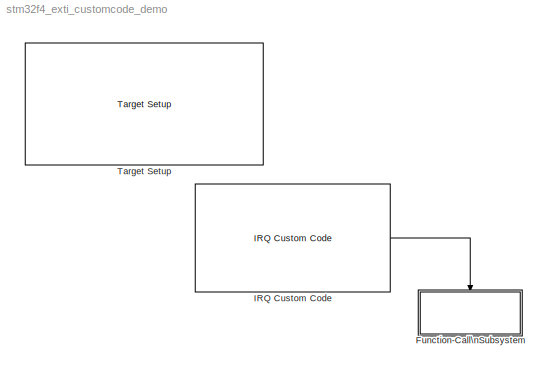
MODEL stm32f4_exti_customcode_demo
KIND model
CONFIG PreLoadFcn = waijung.modelPreload; % Required for working with Waijung Blockset. Do not remove.
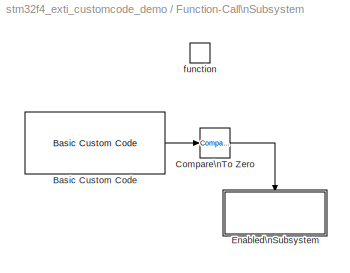
BLOCK [SubSystem] Function-Call\nSubsystem
  FunctionWithSeparateData = off
  MaskHideContents = off
  MinAlgLoopOccurrences = off
  Opaque = off
  Ports = [0, 0, 0, 1]
  PropExecContextOutsideSubsystem = off
  RTWSystemCode = Auto
  RequestExecContextInheritance = off
  TreatAsAtomicUnit = on
BLOCK [Reference] Function-Call\nSubsystem/Basic Custom Code  REF=waijung_customcode/Basic Custom Code
  Ports = [0, 1]
  SourceBlock = waijung_customcode/Basic Custom Code
  SourceType = waijung_basic_customcode
  blockid = FunctionCallSubsystemBasicCustomCode
  cinputportlabel = Sensor1,Sensor2,Switch1,Switch2
  cinputportlabelstr = [\"Sensor1\",\"Sensor2\",\"Switch1\",\"Switch2\"]
  coutputportlabel = IT_Status
  coutputportlabelstr = [\"IT_Status\"]
  enablecustomportlabel = on
  incfiles = {}
  incfilestrarray = []
  incpath = {}
  inputportcount = 0
  inputportdiminfo = []
  inputporttypeid = [-1]
  outputfuncallstr = { uint32_t reg_val; reg_val = (uint32_t) EXTI_GetITStatus(EXTI_Line0); *out1 = reg_val;}
  outputportcount = 1
  outputportdiminfo = [1  1  1  7]
  outputporttype = uint32
  outputporttypeid = [7]
  sampletime = inf
  sampletimestr = -1
  srcfiles = {}
  srcpath = {}
BLOCK [Reference] Function-Call\nSubsystem/Compare\nTo Zero  REF=simulink/Logic and Bit\nOperations/Compare\nTo Zero
  FunctionWithSeparateData = off
  LogicOutDataTypeMode = uint8
  Ports = [1, 1]
  RTWMemSecDataConstants = Inherit from model
  RTWMemSecDataInternal = Inherit from model
  RTWMemSecDataParameters = Inherit from model
  RTWMemSecFuncExecute = Inherit from model
  RTWMemSecFuncInitTerm = Inherit from model
  ShowPortLabels = FromPortIcon
  SourceBlock = simulink/Logic and Bit\nOperations/Compare\nTo Zero
  SourceType = Compare To Zero
  SystemSampleTime = -1
  ZeroCross = off
  relop = ~=
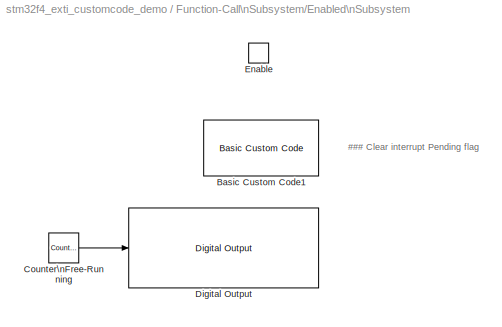
BLOCK [SubSystem] Function-Call\nSubsystem/Enabled\nSubsystem
  FunctionWithSeparateData = off
  MaskHideContents = off
  MinAlgLoopOccurrences = off
  Opaque = off
  Ports = [0, 0, 1]
  PropExecContextOutsideSubsystem = off
  RTWSystemCode = Auto
  RequestExecContextInheritance = off
  TreatAsAtomicUnit = on
BLOCK [Reference] Function-Call\nSubsystem/Enabled\nSubsystem/Basic Custom Code1  REF=waijung_customcode/Basic Custom Code
  Ports = []
  SourceBlock = waijung_customcode/Basic Custom Code
  SourceType = waijung_basic_customcode
  blockid = FunctionCallSubsystemEnabledSubsystemBasicCustomCode1
  cinputportlabel = Sensor1,Sensor2,Switch1,Switch2
  cinputportlabelstr = [\"Sensor1\",\"Sensor2\",\"Switch1\",\"Switch2\"]
  coutputportlabel = Drive1,Button1
  coutputportlabelstr = [\"Drive1\",\"Button1\"]
  enablecustomportlabel = on
  incfiles = {}
  incfilestrarray = []
  incpath = {}
  inputportcount = 0
  inputportdiminfo = []
  inputporttypeid = [-1]
  outputfuncallstr = { EXTI_ClearITPendingBit(EXTI_Line0); }
  outputportcount = 0
  outputportdiminfo = []
  outputporttypeid = [-1]
  sampletime = inf
  sampletimestr = -1
  srcfiles = {}
  srcpath = {}
BLOCK [Reference] Function-Call\nSubsystem/Enabled\nSubsystem/Counter\nFree-Running  REF=simulink/Sources/Counter\nFree-Running
  FunctionWithSeparateData = off
  NumBits = 16
  Ports = [0, 1]
  RTWMemSecDataConstants = Inherit from model
  RTWMemSecDataInternal = Inherit from model
  RTWMemSecDataParameters = Inherit from model
  RTWMemSecFuncExecute = Inherit from model
  RTWMemSecFuncInitTerm = Inherit from model
  ShowPortLabels = FromPortIcon
  SourceBlock = simulink/Sources/Counter\nFree-Running
  SourceType = Counter Free-Running
  SystemSampleTime = -1
  tsamp = -1
BLOCK [Reference] Function-Call\nSubsystem/Enabled\nSubsystem/Digital Output  REF=stm32f4_io_lib/Digital Output
  Ports = [1]
  SourceBlock = stm32f4_io_lib/Digital Output
  SourceType = stm32f4_digital_output
  bitbandingstr = \n#define FunctionCallSubsystemEnabledSubsystemDigitalOutput_D15 Peripheral_BB(GPIOD->ODR, 15)  /* Output pin */
  blockid = FunctionCallSubsystemEnabledSubsystemDigitalOutput
  cinputportlabel = In1, In2
  coutputportlabel = 0
  enablecustomportlabel = off
  globalinit = off
  pinstr = GPIO_Pin_15
  port = D
  porttype = Push Pull
  porttypestr = PP
  sampletime = -1
  sampletimestr = -1
  speed = 100
  use_bitband = on
  use_pin0 = off
  use_pin1 = off
  use_pin10 = off
  use_pin11 = off
  use_pin12 = off
  use_pin13 = off
  use_pin14 = off
  use_pin15 = on
  use_pin2 = off
  use_pin3 = off
  use_pin4 = off
  use_pin5 = off
  use_pin6 = off
  use_pin7 = off
  use_pin8 = off
  use_pin9 = off
  usedpinarray = [0  0  0  0  0  0  0  0  0  0  0  0  0  0  0  1]
BLOCK [EnablePort] Function-Call\nSubsystem/Enabled\nSubsystem/Enable
  Ports = []
BLOCK [TriggerPort] Function-Call\nSubsystem/function
  Ports = []
  StatesWhenEnabling = held
  TriggerType = function-call
BLOCK [Reference] IRQ Custom Code  REF=waijung_customcode/IRQ Custom Code
  Ports = [0, 1]
  SourceBlock = waijung_customcode/IRQ Custom Code
  SourceType = waijung_irq_customcode
  blockid = IRQCustomCode
  cinputportlabelstr = [\"\"]
  coutputportlabel = IRQ
  coutputportlabelstr = [\"IRQ\"]
  disablefuncallstr = /* disable_exti_customcode(); */
  enablecustomportlabel = on
  enablefuncallstr = enable_exti_customcode();
  incfiles = {'stm32f4xx_gpio.h';'stm32f4xx_exti.h'; 'exti_customcode.h'}
  incfilestrarray = [\"stm32f4xx_gpio.h\",\"stm32f4xx_exti.h\",\"exti_customcode.h\"]
  incpath = {stm32f4incpath, fullfile(pwd,'exti_customcode')}
  initialfuncallstr = /* Write block start-up code here */
  inputportcount = 0
  inputporttypeid = [-1]
  outputfuncallstr = void EXTI0_IRQHandler (void)
  outputportcount = 1
  outputporttype = uint32
  outputporttypeid = [7]
  sampletime = inf
  sampletimestr = Inf
  srcfiles = {'stm32f4xx_gpio.c','stm32f4xx_exti.c', 'exti_customcode.c'}
  srcpath = {stm32f4srcpath, fullfile(pwd,'exti_customcode')}
BLOCK [Reference] Target Setup  REF=stm32f4_device_config_lib/Target Setup
  Ports = []
  Priority = 100
  SourceBlock = stm32f4_device_config_lib/Target Setup
  SourceType = stm32f4_target_setup
  assemblercontrolstr = $(patsubst %, -I%, .) -mcpu=cortex-m4 -mthumb -mthumb-interwork -mfloat-abi=hard -mfpu=fpv4-sp-d16 -ffast-math -Wall -Wextra -Ofast -Wa,-amhls=$(<:.s=.lst) -D__STACK_SIZE=$(STACK_SIZE) -D__HEAP_SIZE=$(HEAP_SIZE)
  blockid = TargetSetup
  clockconfig = HSEOSC-8MHz
  compiler = GNU ARM
  compilercontrolstr = $(patsubst %, -I%, .) -mcpu=cortex-m4 -mthumb -mthumb-interwork -mfloat-abi=hard -mfpu=fpv4-sp-d16 -ffast-math -Wall -Wextra -Ofast
  editctrlstr = on
  enableautocompiledownload = on
  execprofile = None
  flashlength = 1024k
  flashorigin = 0x8000000
  fullchiperase = off
  hclk = 168000000
  heapsize = 0x2000
  hseval = 8000000
  lastprofileruart = 3
  linkercontrolstr = -T$(LD_SCRIPT) -g -Wl,-Map=$(MAP),--cref,--no-warn-mismatch -mcpu=cortex-m4 -mthumb -mthumb-interwork -mfloat-abi=hard -mfpu=fpv4-sp-d16 -specs=nosys.specs
  manualsetsampletime = off
  mcu = STM32F417IG (LQFP176)
  mcustr = STM32F417IG
  previous_compiler = GNU ARM
  profilerbaud = 500000
  profilerinitstr = 0.01,168000000,1680000,500000,0
  profilertxpin = D8
  profileruart = 3
  programmerinterface = ST-Link
  ramlength = 128k
  ramorigin = 0x20000000
  runafterdownload = on
  sampletime = 0.01
  showmemoryconfiguration = off
  stacksize = 0x2000
  system_stm32f4xx_c_path = <path>
  systickreloadvalue = 1680000
  useextram = off
ANNOTATION Function-Call\nSubsystem/Enabled\nSubsystem: ### Clear interrupt Pending flag
LINE Function-Call\nSubsystem/Basic Custom Code:1 -> Function-Call\nSubsystem/Compare\nTo Zero:1
LINE Function-Call\nSubsystem/Compare\nTo Zero:1 -> Function-Call\nSubsystem/Enabled\nSubsystem:enable
LINE Function-Call\nSubsystem/Enabled\nSubsystem/Counter\nFree-Running:1 -> Function-Call\nSubsystem/Enabled\nSubsystem/Digital Output:1
LINE IRQ Custom Code:1 -> Function-Call\nSubsystem:trigger
note: 1 file-system path scrubbed to <path> (not preserved elsewhere — flat text is the only slx artifact)
